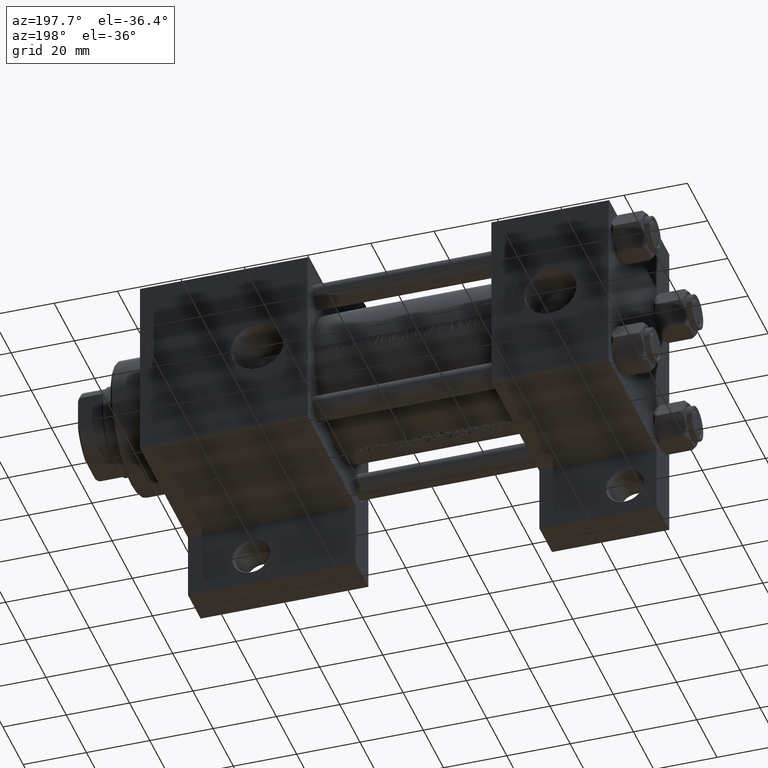
[diagram: clean part render]
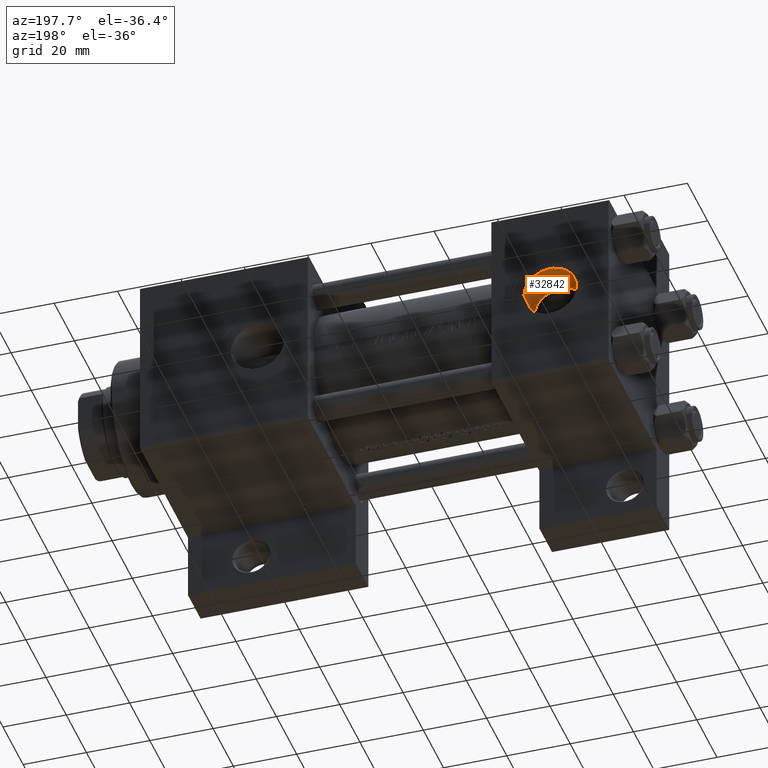
[diagram: same view with one face highlighted and labeled with its STEP entity id]
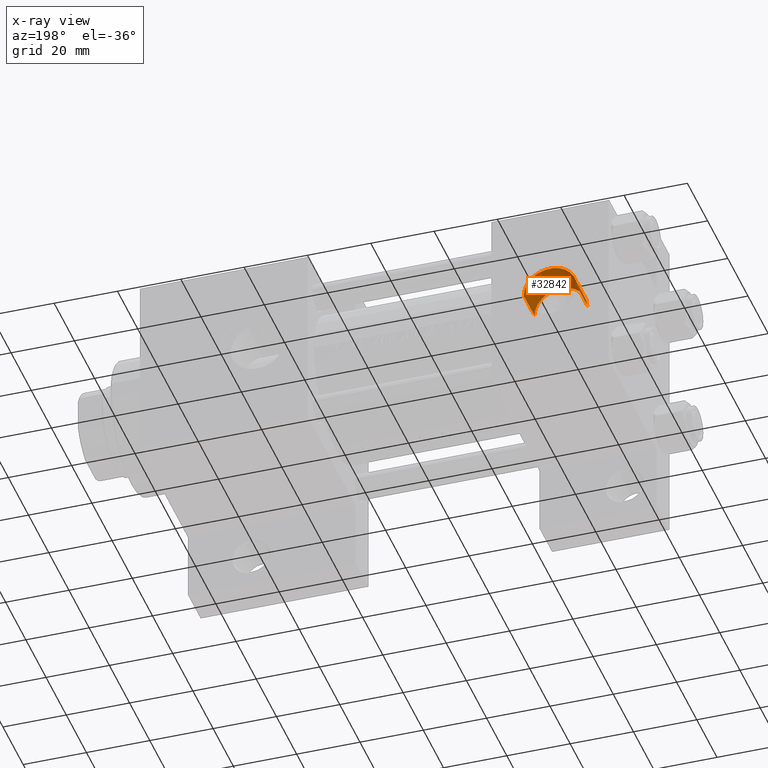
[diagram: x-ray of the same camera — body ghosted, the highlighted face saturated]
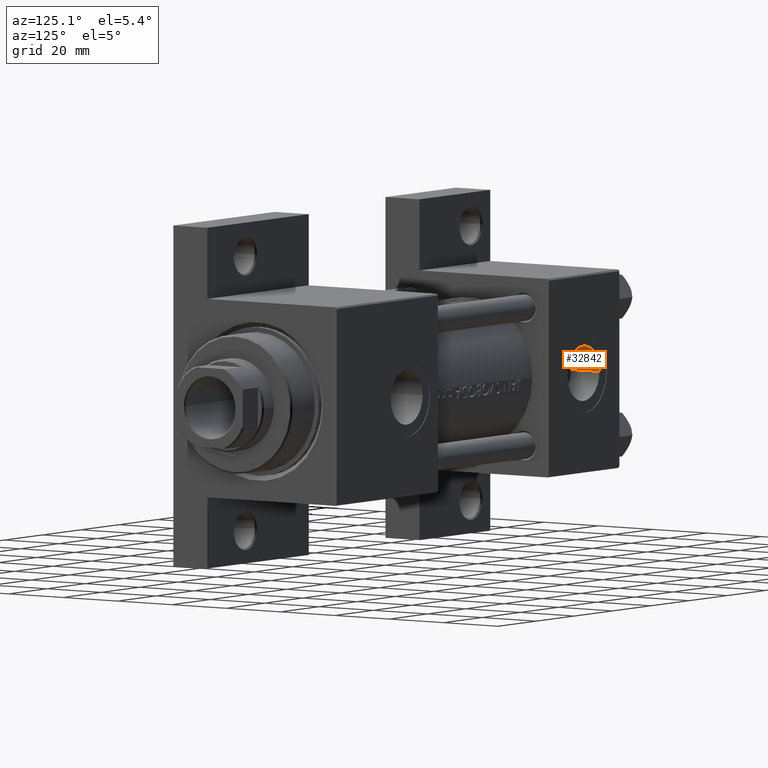
[diagram: same view with one face highlighted and labeled with its STEP entity id]
A machine part, auxiliary view. The second image highlights one B-rep face of the part: STEP entity #32842.
The next image is the same camera in x-ray: the body ghosted, the highlighted face saturated — about 0% of this face is hidden behind the body in this view.
A second angle (auxiliary view) of the same face is appended — the face is thin or edge-on in the first view.
In plain terms, the highlighted cylindrical surface (edge-blend (fillet) strip) has radius 8.33 mm, axis along (0, 1, 0).
Its self-contained STEP definition (entity closure, byte-faithful):
#2274 = VERTEX_POINT ( 'NONE', #12618 ) ;
#2855 = VERTEX_POINT ( 'NONE', #41039 ) ;
#3024 = ORIENTED_EDGE ( 'NONE', *, *, #23141, .F. ) ;
#3970 = ORIENTED_EDGE ( 'NONE', *, *, #25330, .T. ) ;
#7079 = EDGE_LOOP ( 'NONE', ( #12185, #3970, #15082, #3024 ) ) ;
#9152 = EDGE_CURVE ( 'NONE', #2274, #24649, #31591, .T. ) ;
#9673 = VECTOR ( 'NONE', #44891, 1000.000000000000000 ) ;
#12185 = ORIENTED_EDGE ( 'NONE', *, *, #9152, .F. ) ;
#12618 = CARTESIAN_POINT ( 'NONE',  ( 10.16999999999999638, -2.449316168263869821E-15, 19.19999999999999574 ) ) ;
#13750 = CARTESIAN_POINT ( 'NONE',  ( 26.82999999999999829, -3.469446951953614978E-15, 29.79999999999999716 ) ) ;
#15039 = AXIS2_PLACEMENT_3D ( 'NONE', #17225, #35541, #31936 ) ;
#15082 = ORIENTED_EDGE ( 'NONE', *, *, #35830, .T. ) ;
#15552 = FACE_OUTER_BOUND ( 'NONE', #7079, .T. ) ;
#16735 = DIRECTION ( 'NONE',  ( 1.000000000000000000, 0.000000000000000000, 0.000000000000000000 ) ) ;
#17225 = CARTESIAN_POINT ( 'NONE',  ( 18.50000000000000000, -3.469446951953614978E-15, 29.79999999999999716 ) ) ;
#22599 = CARTESIAN_POINT ( 'NONE',  ( 26.82999999999999829, -3.469446951953614978E-15, 19.19999999999999574 ) ) ;
#23141 = EDGE_CURVE ( 'NONE', #24649, #25852, #23353, .T. ) ;
#23254 = CARTESIAN_POINT ( 'NONE',  ( 18.50000000000000000, -3.469446951953614978E-15, 19.19999999999999574 ) ) ;
#23353 = LINE ( 'NONE', #26242, #46521 ) ;
#23499 = CIRCLE ( 'NONE', #15039, 8.330000000000000071 ) ;
#24207 = DIRECTION ( 'NONE',  ( 0.000000000000000000, 0.000000000000000000, 1.000000000000000000 ) ) ;
#24649 = VERTEX_POINT ( 'NONE', #22599 ) ;
#25330 = EDGE_CURVE ( 'NONE', #2274, #2855, #26572, .T. ) ;
#25852 = VERTEX_POINT ( 'NONE', #13750 ) ;
#26242 = CARTESIAN_POINT ( 'NONE',  ( 26.82999999999999829, -3.469446951953614978E-15, 19.19999999999999574 ) ) ;
#26572 = LINE ( 'NONE', #40813, #9673 ) ;
#30242 = CYLINDRICAL_SURFACE ( 'NONE', #32655, 8.330000000000000071 ) ;
#31591 = CIRCLE ( 'NONE', #44648, 8.330000000000000071 ) ;
#31936 = DIRECTION ( 'NONE',  ( 1.000000000000000000, 0.000000000000000000, 0.000000000000000000 ) ) ;
#32655 = AXIS2_PLACEMENT_3D ( 'NONE', #23254, #38199, #44708 ) ;
#32842 = ADVANCED_FACE ( 'NONE', ( #15552 ), #30242, .F. ) ;
#33253 = DIRECTION ( 'NONE',  ( -0.000000000000000000, -0.000000000000000000, 1.000000000000000000 ) ) ;
#35541 = DIRECTION ( 'NONE',  ( 0.000000000000000000, 0.000000000000000000, 1.000000000000000000 ) ) ;
#35830 = EDGE_CURVE ( 'NONE', #2855, #25852, #23499, .T. ) ;
#38199 = DIRECTION ( 'NONE',  ( -0.000000000000000000, -0.000000000000000000, 1.000000000000000000 ) ) ;
#40813 = CARTESIAN_POINT ( 'NONE',  ( 10.16999999999999638, -2.449316168263869821E-15, 19.19999999999999574 ) ) ;
#41039 = CARTESIAN_POINT ( 'NONE',  ( 10.16999999999999638, -2.449316168263869821E-15, 29.79999999999999716 ) ) ;
#43422 = CARTESIAN_POINT ( 'NONE',  ( 18.50000000000000000, -3.469446951953614978E-15, 19.19999999999999574 ) ) ;
#44648 = AXIS2_PLACEMENT_3D ( 'NONE', #43422, #24207, #16735 ) ;
#44708 = DIRECTION ( 'NONE',  ( 1.000000000000000000, 0.000000000000000000, 0.000000000000000000 ) ) ;
#44891 = DIRECTION ( 'NONE',  ( -0.000000000000000000, -0.000000000000000000, 1.000000000000000000 ) ) ;
#46521 = VECTOR ( 'NONE', #33253, 1000.000000000000000 ) ;